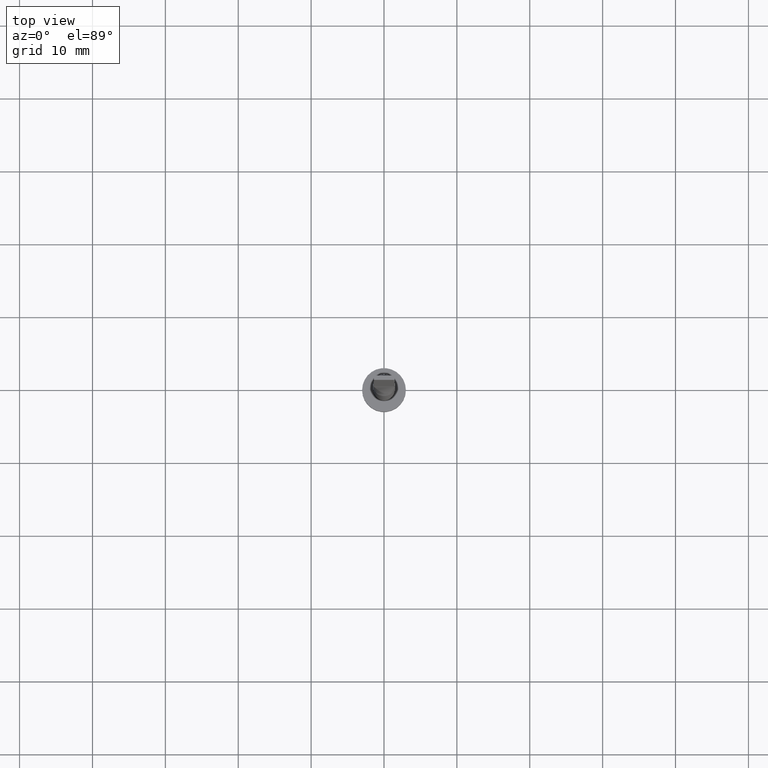
[diagram: clean part render]
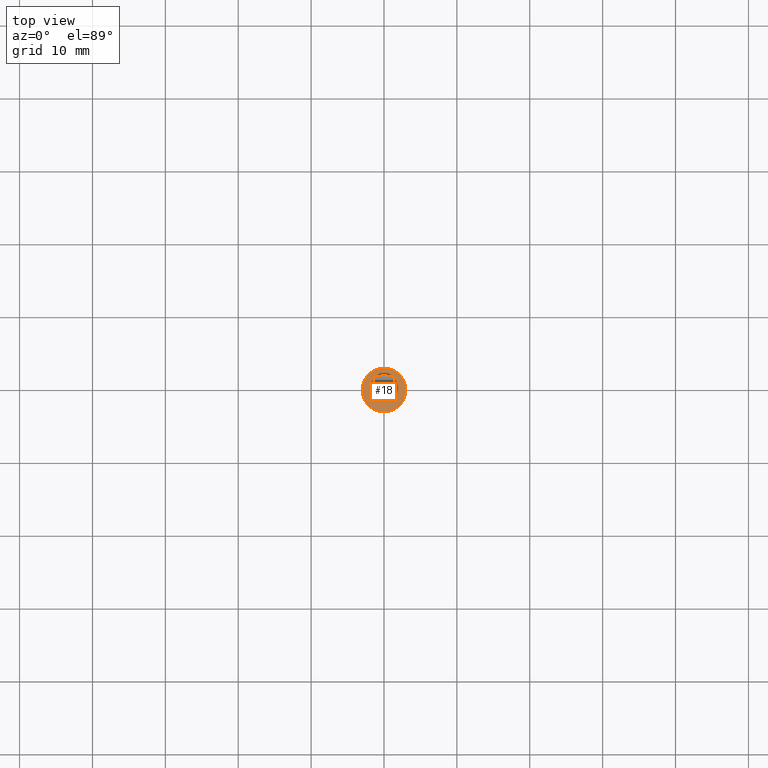
[diagram: same view with one face highlighted and labeled with its STEP entity id]
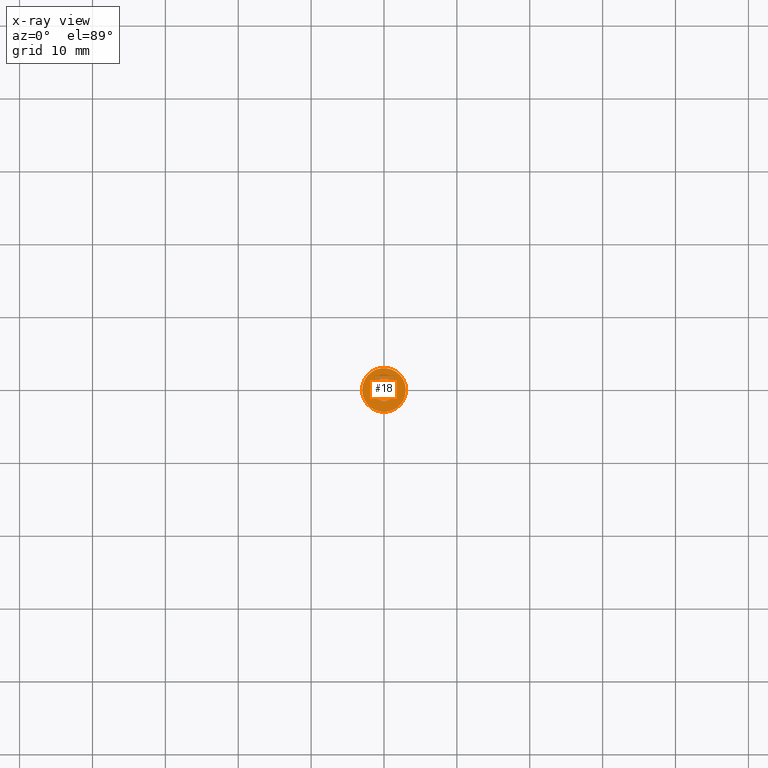
[diagram: x-ray of the same camera — body ghosted, the highlighted face saturated]
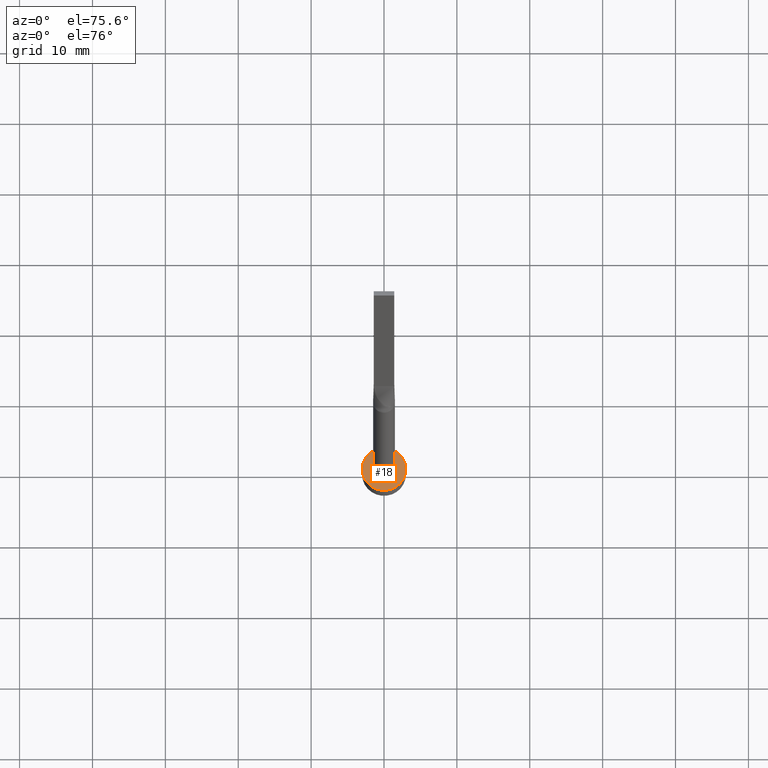
[diagram: same view with one face highlighted and labeled with its STEP entity id]
A machine part, top view. The second image highlights one B-rep face of the part: STEP entity #18.
The next image is the same camera in x-ray: the body ghosted, the highlighted face saturated — about 11% of this face is hidden behind the body in this view.
A second angle (auxiliary view) of the same face is appended — the face is thin or edge-on in the first view.
In plain terms, the highlighted planar face has unit normal (0, 0, 1).
Its self-contained STEP definition (entity closure, byte-faithful):
#18 = ADVANCED_FACE ( 'NONE', ( #70, #532 ), #136, .T. ) ;
#31 = DIRECTION ( 'NONE',  ( 0.000000000000000000, 0.000000000000000000, 1.000000000000000000 ) ) ;
#38 = DIRECTION ( 'NONE',  ( 1.000000000000000000, 0.000000000000000000, 0.000000000000000000 ) ) ;
#45 = ORIENTED_EDGE ( 'NONE', *, *, #455, .F. ) ;
#57 = ORIENTED_EDGE ( 'NONE', *, *, #155, .T. ) ;
#70 = FACE_BOUND ( 'NONE', #304, .T. ) ;
#77 = AXIS2_PLACEMENT_3D ( 'NONE', #540, #577, #38 ) ;
#86 = CIRCLE ( 'NONE', #179, 3.000000000000000444 ) ;
#91 = DIRECTION ( 'NONE',  ( 0.000000000000000000, 0.000000000000000000, 1.000000000000000000 ) ) ;
#105 = DIRECTION ( 'NONE',  ( 1.000000000000000000, 0.000000000000000000, 0.000000000000000000 ) ) ;
#125 = CIRCLE ( 'NONE', #444, 1.500000000000000222 ) ;
#136 = PLANE ( 'NONE',  #311 ) ;
#155 = EDGE_CURVE ( 'NONE', #156, #169, #556, .T. ) ;
#156 = VERTEX_POINT ( 'NONE', #233 ) ;
#169 = VERTEX_POINT ( 'NONE', #268 ) ;
#179 = AXIS2_PLACEMENT_3D ( 'NONE', #288, #91, #244 ) ;
#218 = DIRECTION ( 'NONE',  ( 1.000000000000000000, 0.000000000000000000, 0.000000000000000000 ) ) ;
#220 = CARTESIAN_POINT ( 'NONE',  ( 0.000000000000000000, 0.000000000000000000, 3.000000000000000000 ) ) ;
#226 = ORIENTED_EDGE ( 'NONE', *, *, #275, .F. ) ;
#233 = CARTESIAN_POINT ( 'NONE',  ( 3.000000000000000444, 3.673940397442060361E-16, 3.000000000000000000 ) ) ;
#240 = CARTESIAN_POINT ( 'NONE',  ( -1.500000000000000222, 0.000000000000000000, 3.000000000000000000 ) ) ;
#244 = DIRECTION ( 'NONE',  ( 1.000000000000000000, 0.000000000000000000, 0.000000000000000000 ) ) ;
#268 = CARTESIAN_POINT ( 'NONE',  ( -3.000000000000000444, 0.000000000000000000, 3.000000000000000000 ) ) ;
#275 = EDGE_CURVE ( 'NONE', #390, #470, #125, .T. ) ;
#276 = EDGE_CURVE ( 'NONE', #169, #156, #86, .T. ) ;
#288 = CARTESIAN_POINT ( 'NONE',  ( 0.000000000000000000, 0.000000000000000000, 3.000000000000000000 ) ) ;
#304 = EDGE_LOOP ( 'NONE', ( #45, #226 ) ) ;
#311 = AXIS2_PLACEMENT_3D ( 'NONE', #527, #471, #482 ) ;
#385 = EDGE_LOOP ( 'NONE', ( #530, #57 ) ) ;
#387 = AXIS2_PLACEMENT_3D ( 'NONE', #220, #31, #218 ) ;
#390 = VERTEX_POINT ( 'NONE', #391 ) ;
#391 = CARTESIAN_POINT ( 'NONE',  ( 1.500000000000000222, 1.836970198721030181E-16, 3.000000000000000000 ) ) ;
#444 = AXIS2_PLACEMENT_3D ( 'NONE', #512, #498, #105 ) ;
#455 = EDGE_CURVE ( 'NONE', #470, #390, #536, .T. ) ;
#470 = VERTEX_POINT ( 'NONE', #240 ) ;
#471 = DIRECTION ( 'NONE',  ( 0.000000000000000000, 0.000000000000000000, 1.000000000000000000 ) ) ;
#482 = DIRECTION ( 'NONE',  ( 1.000000000000000000, 0.000000000000000000, -0.000000000000000000 ) ) ;
#498 = DIRECTION ( 'NONE',  ( 0.000000000000000000, 0.000000000000000000, 1.000000000000000000 ) ) ;
#512 = CARTESIAN_POINT ( 'NONE',  ( 0.000000000000000000, 0.000000000000000000, 3.000000000000000000 ) ) ;
#527 = CARTESIAN_POINT ( 'NONE',  ( 0.000000000000000000, 0.000000000000000000, 3.000000000000000000 ) ) ;
#530 = ORIENTED_EDGE ( 'NONE', *, *, #276, .T. ) ;
#532 = FACE_OUTER_BOUND ( 'NONE', #385, .T. ) ;
#536 = CIRCLE ( 'NONE', #387, 1.500000000000000222 ) ;
#540 = CARTESIAN_POINT ( 'NONE',  ( 0.000000000000000000, 0.000000000000000000, 3.000000000000000000 ) ) ;
#556 = CIRCLE ( 'NONE', #77, 3.000000000000000444 ) ;
#577 = DIRECTION ( 'NONE',  ( 0.000000000000000000, 0.000000000000000000, 1.000000000000000000 ) ) ;